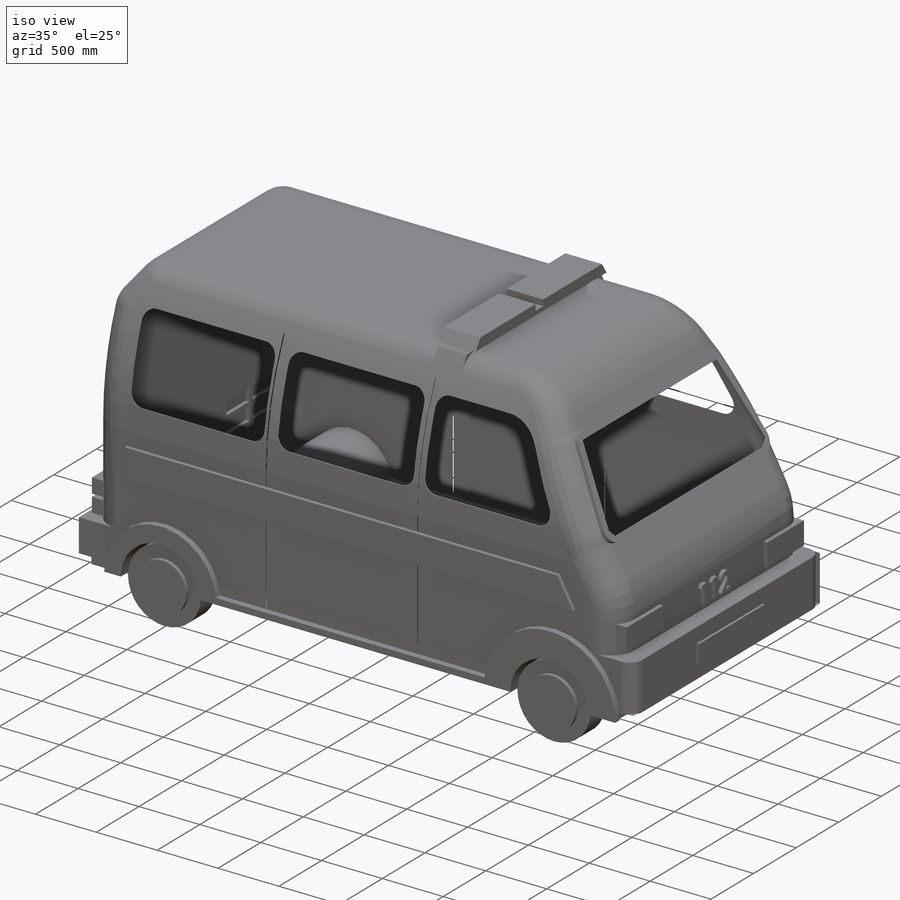
[diagram: iso view]
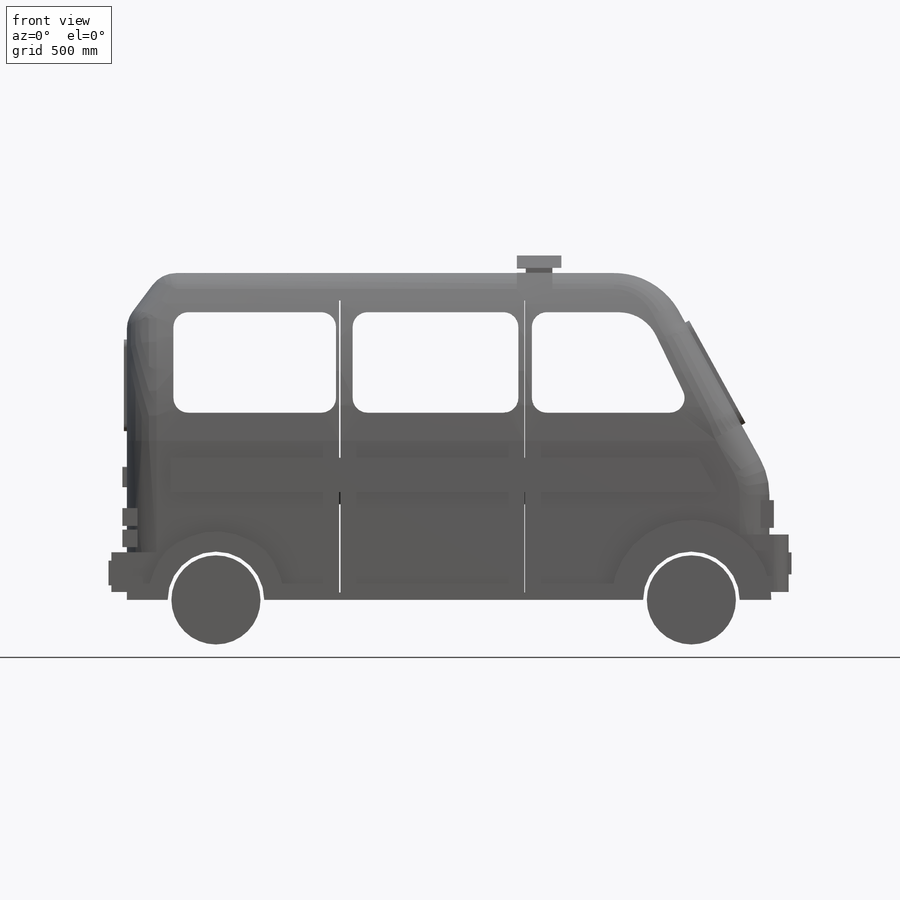
[diagram: front view]
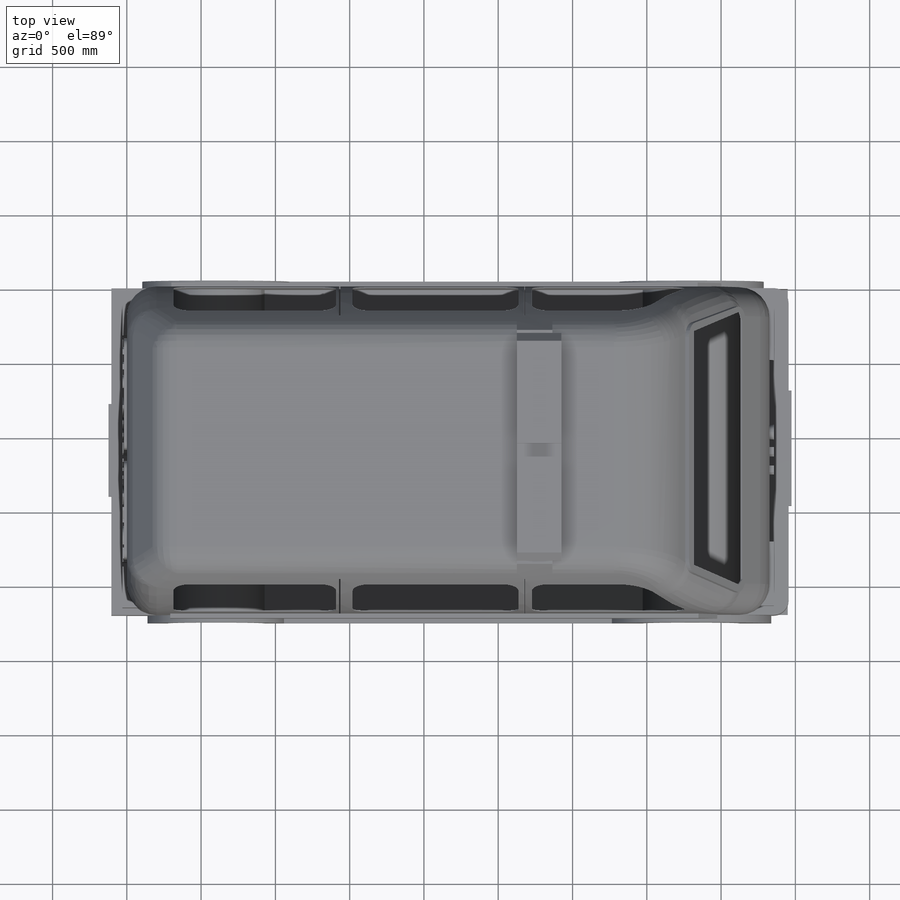
[diagram: top view]
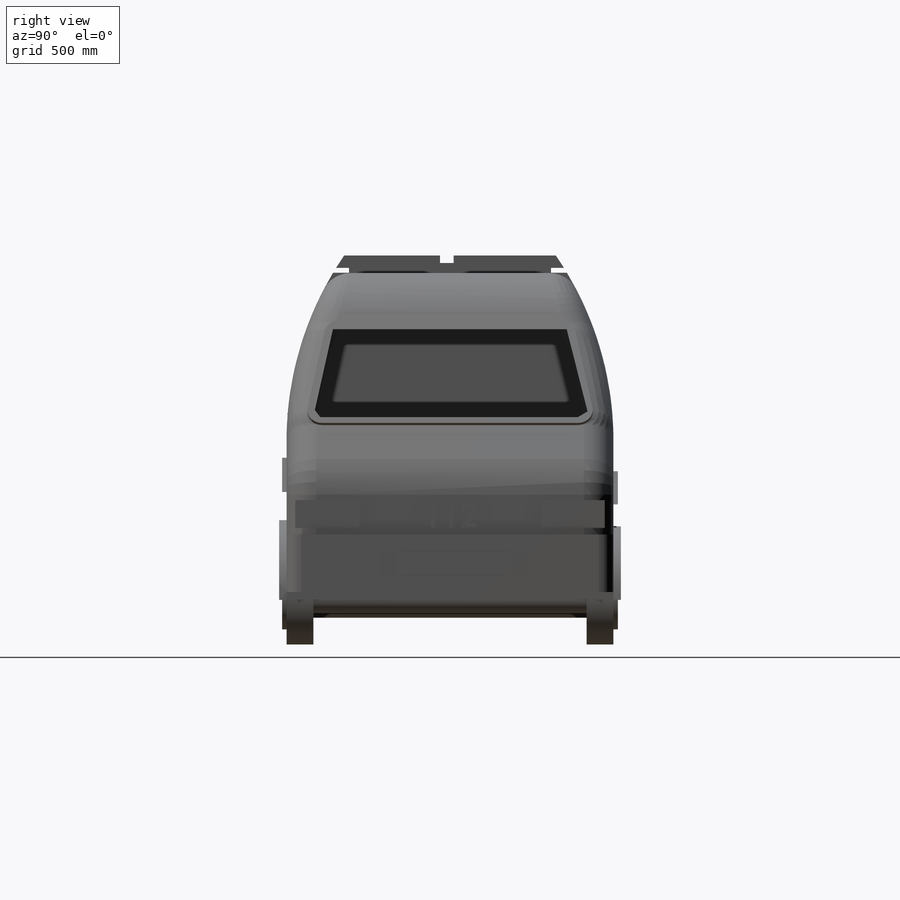
[diagram: right view]
SOLIDWORKS PART (.sldprt)
format: sldprt  version: not decoded by parser v0  size: 1,404,928 bytes
history: native  units: mm
features: sketch x30, extrude x21, cut_extrude x9, plane x3, fillet x3, material x1, shell x1 (+13 scaffold rows collapsed)
feature tree (81):
  scaffold x13  (default folders/planes/origin — collapsed)
  material  "Malzeme <belirli değil>"
  plane  "Ön Düzlem"
  plane  "Üst Düzlem"
  plane  "Sağ Düzlem"
  sketch  "Çizim1"  dims[c1.D1=650.0mm c1.D2=650.0mm c1.D3=650.0mm c1.D6=325.0mm c1.D8=200.0mm c1.D9=500.0mm c2.D1=4300.0mm c2.D2=600.0mm c2.D4=750.0mm c2.D5=200.0mm c2.D6=3200.0mm c2.D7=2200.0mm]
  extrude  "Yükseklik-Ekstrüzyon1"  Depth=2200mm
  sketch  "Çizim2"
  cut_extrude  "Kes-Ekstrüzyon1"  Depth=5000mm
  sketch  "Çizim3"
  extrude  "Yükseklik-Ekstrüzyon2"  Depth=30mm
  sketch  "Çizim4"
  extrude  "Yükseklik-Ekstrüzyon3"  Depth=30mm
  fillet  "Radyus3"  Radius=200mm
  sketch  "Çizim5"
  cut_extrude  "Kes-Ekstrüzyon2"  Depth=60mm
  sketch  "Çizim6"
  cut_extrude  "Kes-Ekstrüzyon3"  Depth=60mm
  sketch  "Çizim7"
  cut_extrude  "Kes-Ekstrüzyon4"  Depth=420mm
  sketch  "Çizim8"
  cut_extrude  "Kes-Ekstrüzyon5"  Depth=420mm
  sketch  "Çizim9"  dims[D1=100.0mm]
  extrude  "Yükseklik-Ekstrüzyon4"  Depth=30mm
  fillet  "Radyus4"  Radius=200mm
  shell  "İç Boşaltma1"  Thickness=6mm
  sketch  "Çizim10"  dims[D1=280.0mm D2=100.0mm]
  cut_extrude  "Kes-Ekstrüzyon6"  Depth=5000mm
  sketch  "Çizim11"
  cut_extrude  "Kes-Ekstrüzyon7"  Depth=50mm
  sketch  "Çizim12"
  extrude  "Yükseklik-Ekstrüzyon5"  Depth=50mm
  sketch  "Çizim13"
  extrude  "Yükseklik-Ekstrüzyon6"  Depth=50mm
  sketch  "Çizim14"  dims[D1=600.0mm D2=~243.97181mm]
  extrude  "Yükseklik-Ekstrüzyon7"  Depth=180mm
  sketch  "Çizim15"
  extrude  "Yükseklik-Ekstrüzyon8"  Depth=180mm
  sketch  "Çizim16"  dims[D1=240.0mm]
  extrude  "Yükseklik-Ekstrüzyon9"  [1 undecoded]
  sketch  "Çizim17"  dims[D1=~95.783539mm]
  extrude  "Yükseklik-Ekstrüzyon10"  [1 undecoded]
  sketch  "Çizim18"  dims[D1=~176.747428mm]
  extrude  "Yükseklik-Ekstrüzyon11"  Depth=30mm
  sketch  "Çizim19"  dims[D1=~170.23823mm]
  extrude  "Yükseklik-Ekstrüzyon12"  Depth=30mm
  sketch  "Çizim20"  dims[D1=5.0mm D2=40.0mm D3=40.0mm D4=10.0mm D5=40.0mm]
  cut_extrude  "Kes-Ekstrüzyon8"  Depth=5000mm
  sketch  "Çizim21"
  extrude  "Yükseklik-Ekstrüzyon13"  Depth=50mm
  sketch  "Çizim22"
  cut_extrude  "Kes-Ekstrüzyon9"  Depth=50mm
  sketch  "Çizim23"  dims[D1=10.0mm]
  extrude  "Yükseklik-Ekstrüzyon14"  [1 undecoded]
  sketch  "Çizim24"
  extrude  "Yükseklik-Ekstrüzyon15"  Depth=30mm
  sketch  "Çizim25"
  extrude  "Yükseklik-Ekstrüzyon16"  Depth=30mm
  sketch  "Çizim26"
  extrude  "Yükseklik-Ekstrüzyon17"  Depth=30mm
  sketch  "Çizim27"
  extrude  "Yükseklik-Ekstrüzyon18"  Depth=30mm
  sketch  "Çizim28"
  extrude  "Yükseklik-Ekstrüzyon19"  Depth=20mm
  sketch  "Çizim29"  dims[D1=50.0mm]
  extrude  "Yükseklik-Ekstrüzyon20"  Depth=20mm
  sketch  "Çizim30"
  extrude  "Yükseklik-Ekstrüzyon21"  Depth=20mm
  fillet  "Radyus6"  Radius=100mm
decode coverage: 42 of 64 modeling features carry decoded parameters
note: ~ marks probable driven/reference dimensions
note: 3 parameter values undecoded
summary: no parameter record found for 3 features
note: suppression state not decoded; provenance and decode notes live in map.json
